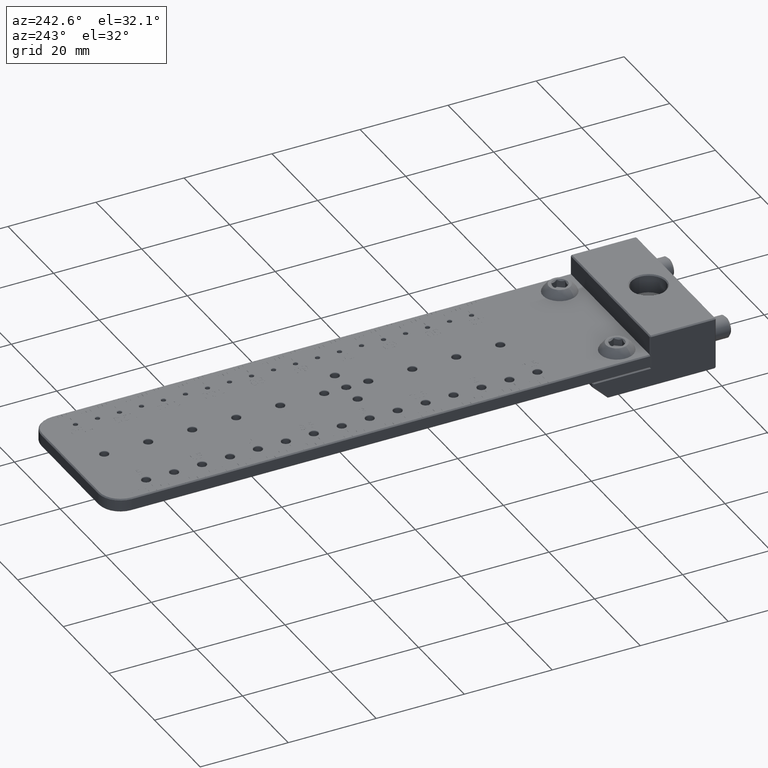
[diagram: clean part render]
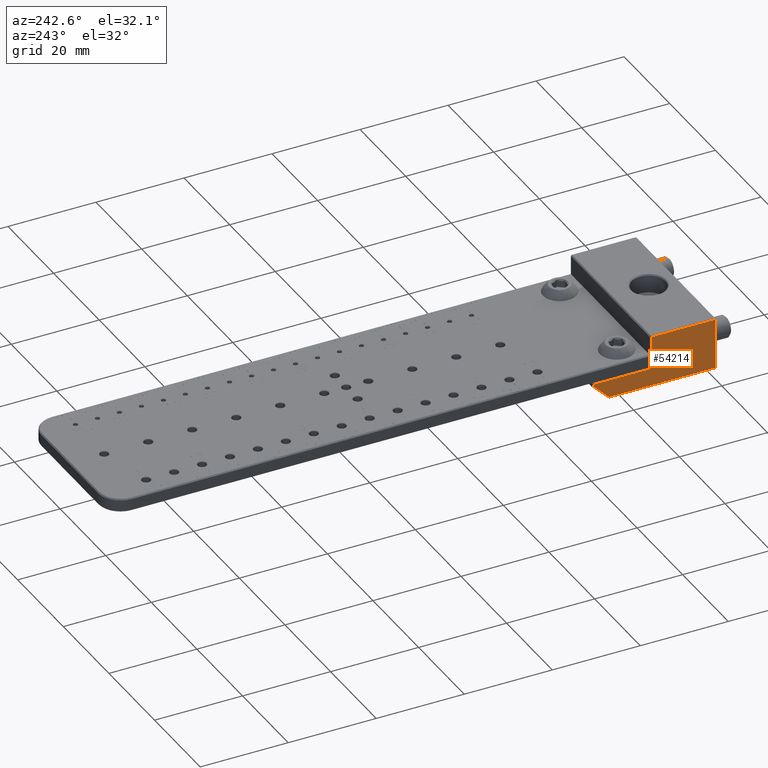
[diagram: same view with one face highlighted and labeled with its STEP entity id]
A machine part, auxiliary view. The second image highlights one B-rep face of the part: STEP entity #54214.
In plain terms, the highlighted planar face has unit normal (1, 0, 0).
Its self-contained STEP definition (entity closure, byte-faithful):
#4597 = FACE_OUTER_BOUND ( 'NONE', #73099, .T. ) ;
#6663 = CARTESIAN_POINT ( 'NONE',  ( -17.49999999999999289, 14.74999999999999289, -6.000000000000000000 ) ) ;
#8167 = VECTOR ( 'NONE', #32696, 999.9999999999998863 ) ;
#9637 = VERTEX_POINT ( 'NONE', #94422 ) ;
#13834 = LINE ( 'NONE', #104598, #29504 ) ;
#15339 = DIRECTION ( 'NONE',  ( 1.000000000000000000, 0.000000000000000000, 0.000000000000000000 ) ) ;
#16780 = ORIENTED_EDGE ( 'NONE', *, *, #25649, .T. ) ;
#18409 = VECTOR ( 'NONE', #41255, 1000.000000000000000 ) ;
#21115 = ORIENTED_EDGE ( 'NONE', *, *, #38051, .T. ) ;
#21836 = CARTESIAN_POINT ( 'NONE',  ( -17.49999999999999289, 28.00000000000000000, -5.749999999999992895 ) ) ;
#22146 = VECTOR ( 'NONE', #67662, 1000.000000000000000 ) ;
#23412 = AXIS2_PLACEMENT_3D ( 'NONE', #41002, #15339, #115067 ) ;
#24301 = EDGE_CURVE ( 'NONE', #9637, #44431, #114776, .T. ) ;
#25284 = ORIENTED_EDGE ( 'NONE', *, *, #31136, .T. ) ;
#25649 = EDGE_CURVE ( 'NONE', #92285, #9637, #13834, .T. ) ;
#25650 = ORIENTED_EDGE ( 'NONE', *, *, #82101, .T. ) ;
#26735 = CARTESIAN_POINT ( 'NONE',  ( -17.49999999999999289, 0.2500000000000071609, -6.000000000000000000 ) ) ;
#29504 = VECTOR ( 'NONE', #95639, 1000.000000000000000 ) ;
#31136 = EDGE_CURVE ( 'NONE', #105097, #80467, #53139, .T. ) ;
#31562 = CARTESIAN_POINT ( 'NONE',  ( -17.49999999999999289, 14.74999999999999289, -1.749999999999999778 ) ) ;
#32696 = DIRECTION ( 'NONE',  ( 0.000000000000000000, -0.7071067811865483499, -0.7071067811865467956 ) ) ;
#34450 = CARTESIAN_POINT ( 'NONE',  ( -17.49999999999999289, 24.32322330470334748, -5.823223304703357250 ) ) ;
#34621 = CARTESIAN_POINT ( 'NONE',  ( -17.49999999999999289, 27.74999999999999289, -1.749999999999999778 ) ) ;
#36788 = CARTESIAN_POINT ( 'NONE',  ( -17.49999999999999289, 0.2500000000000071609, 5.750000000000000000 ) ) ;
#38051 = EDGE_CURVE ( 'NONE', #80467, #90391, #114514, .T. ) ;
#41002 = CARTESIAN_POINT ( 'NONE',  ( -17.49999999999999289, 28.00000000000000000, -6.000000000000000000 ) ) ;
#41255 = DIRECTION ( 'NONE',  ( 0.000000000000000000, 0.000000000000000000, 1.000000000000000000 ) ) ;
#42767 = PLANE ( 'NONE',  #23412 ) ;
#43078 = DIRECTION ( 'NONE',  ( 0.000000000000000000, 0.000000000000000000, -1.000000000000000000 ) ) ;
#44357 = ORIENTED_EDGE ( 'NONE', *, *, #96553, .T. ) ;
#44431 = VERTEX_POINT ( 'NONE', #31562 ) ;
#53139 = LINE ( 'NONE', #81206, #56472 ) ;
#54214 = ADVANCED_FACE ( 'NONE', ( #4597 ), #42767, .F. ) ;
#56472 = VECTOR ( 'NONE', #118221, 1000.000000000000000 ) ;
#57082 = LINE ( 'NONE', #21836, #70799 ) ;
#58260 = DIRECTION ( 'NONE',  ( 0.000000000000000000, -1.000000000000000000, 0.000000000000000000 ) ) ;
#59126 = ORIENTED_EDGE ( 'NONE', *, *, #80763, .T. ) ;
#67662 = DIRECTION ( 'NONE',  ( 0.000000000000000000, 1.000000000000000000, 0.000000000000000000 ) ) ;
#69320 = LINE ( 'NONE', #26735, #18409 ) ;
#70799 = VECTOR ( 'NONE', #58260, 1000.000000000000000 ) ;
#73099 = EDGE_LOOP ( 'NONE', ( #21115, #44357, #25650, #16780, #106662, #59126, #25284 ) ) ;
#79708 = CARTESIAN_POINT ( 'NONE',  ( -17.49999999999999289, 0.2500000000000071609, -5.749999999999992895 ) ) ;
#80467 = VERTEX_POINT ( 'NONE', #111575 ) ;
#80672 = CARTESIAN_POINT ( 'NONE',  ( -17.49999999999999289, 24.39644660940671272, -5.749999999999992895 ) ) ;
#80763 = EDGE_CURVE ( 'NONE', #44431, #105097, #116013, .T. ) ;
#81206 = CARTESIAN_POINT ( 'NONE',  ( -17.49999999999999289, 27.74999999999999289, -2.499999999999996891 ) ) ;
#82101 = EDGE_CURVE ( 'NONE', #103489, #92285, #69320, .T. ) ;
#90391 = VERTEX_POINT ( 'NONE', #80672 ) ;
#92253 = VECTOR ( 'NONE', #43078, 1000.000000000000000 ) ;
#92285 = VERTEX_POINT ( 'NONE', #36788 ) ;
#94422 = CARTESIAN_POINT ( 'NONE',  ( -17.49999999999999289, 14.74999999999999289, 5.750000000000000000 ) ) ;
#95138 = CARTESIAN_POINT ( 'NONE',  ( -17.49999999999999289, 28.00000000000000000, -1.749999999999999778 ) ) ;
#95639 = DIRECTION ( 'NONE',  ( 0.000000000000000000, 1.000000000000000000, 0.000000000000000000 ) ) ;
#96553 = EDGE_CURVE ( 'NONE', #90391, #103489, #57082, .T. ) ;
#103489 = VERTEX_POINT ( 'NONE', #79708 ) ;
#104598 = CARTESIAN_POINT ( 'NONE',  ( -17.49999999999999289, 28.00000000000000000, 5.750000000000000000 ) ) ;
#105097 = VERTEX_POINT ( 'NONE', #34621 ) ;
#106662 = ORIENTED_EDGE ( 'NONE', *, *, #24301, .T. ) ;
#111575 = CARTESIAN_POINT ( 'NONE',  ( -17.49999999999999289, 27.74999999999999289, -2.396446609406717609 ) ) ;
#114514 = LINE ( 'NONE', #34450, #8167 ) ;
#114776 = LINE ( 'NONE', #6663, #92253 ) ;
#115067 = DIRECTION ( 'NONE',  ( 0.000000000000000000, 0.000000000000000000, -1.000000000000000000 ) ) ;
#116013 = LINE ( 'NONE', #95138, #22146 ) ;
#118221 = DIRECTION ( 'NONE',  ( 0.000000000000000000, 0.000000000000000000, -1.000000000000000000 ) ) ;